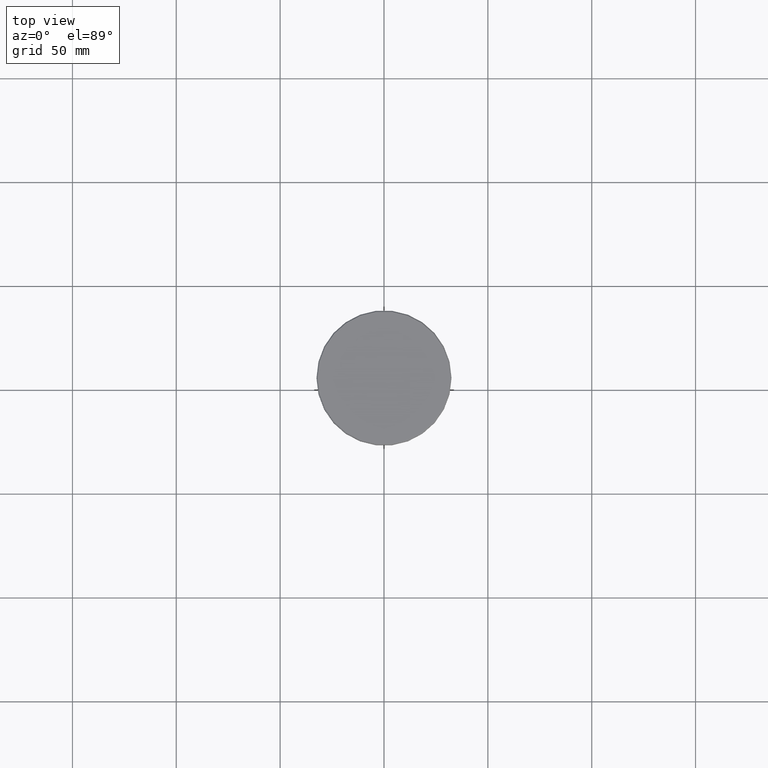
[diagram: clean part render]
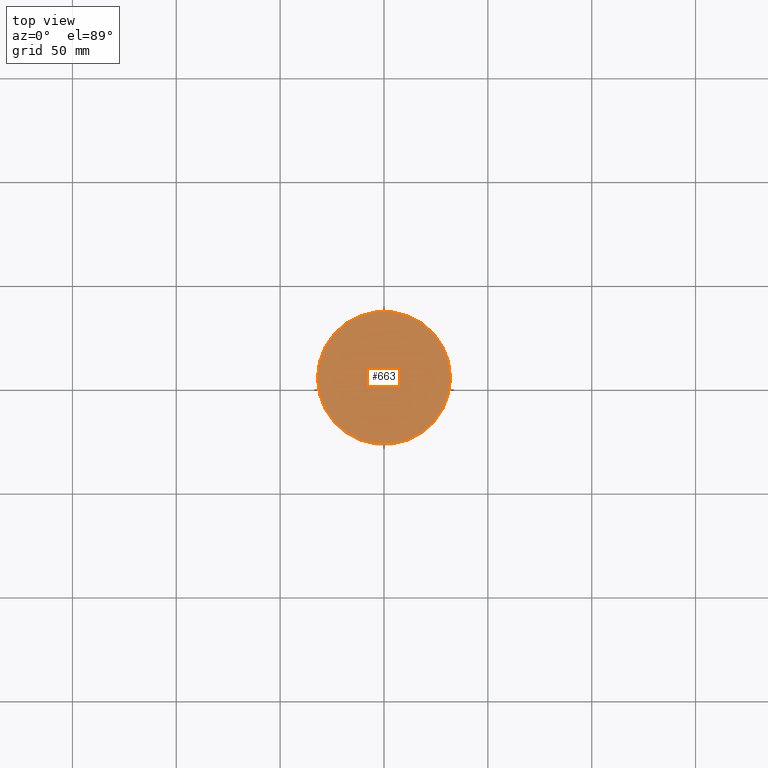
[diagram: same view with one face highlighted and labeled with its STEP entity id]
A machine part, top view. The second image highlights one B-rep face of the part: STEP entity #663.
In plain terms, the highlighted planar face has unit normal (0, -0, 1).
Its self-contained STEP definition (entity closure, byte-faithful):
#77 = VERTEX_POINT ( 'NONE', #855 ) ;
#105 = EDGE_CURVE ( 'NONE', #694, #77, #437, .T. ) ;
#170 = CIRCLE ( 'NONE', #498, 31.99999999999994671 ) ;
#183 = PLANE ( 'NONE',  #742 ) ;
#185 = EDGE_CURVE ( 'NONE', #77, #694, #170, .T. ) ;
#201 = DIRECTION ( 'NONE',  ( 1.000000000000000000, 0.000000000000000000, 0.000000000000000000 ) ) ;
#217 = ORIENTED_EDGE ( 'NONE', *, *, #185, .T. ) ;
#300 = CARTESIAN_POINT ( 'NONE',  ( 0.000000000000000000, 0.000000000000000000, 0.000000000000000000 ) ) ;
#315 = DIRECTION ( 'NONE',  ( -0.000000000000000000, -0.000000000000000000, 1.000000000000000000 ) ) ;
#365 = FACE_OUTER_BOUND ( 'NONE', #656, .T. ) ;
#437 = CIRCLE ( 'NONE', #550, 31.99999999999994671 ) ;
#498 = AXIS2_PLACEMENT_3D ( 'NONE', #926, #1023, #201 ) ;
#550 = AXIS2_PLACEMENT_3D ( 'NONE', #300, #315, #840 ) ;
#656 = EDGE_LOOP ( 'NONE', ( #1145, #217 ) ) ;
#663 = ADVANCED_FACE ( 'NONE', ( #365 ), #183, .T. ) ;
#694 = VERTEX_POINT ( 'NONE', #823 ) ;
#742 = AXIS2_PLACEMENT_3D ( 'NONE', #808, #1183, #813 ) ;
#808 = CARTESIAN_POINT ( 'NONE',  ( 0.000000000000000000, 0.000000000000000000, 0.000000000000000000 ) ) ;
#813 = DIRECTION ( 'NONE',  ( 1.000000000000000000, 0.000000000000000000, 0.000000000000000000 ) ) ;
#823 = CARTESIAN_POINT ( 'NONE',  ( -31.99999999999994671, 0.000000000000000000, 0.000000000000000000 ) ) ;
#840 = DIRECTION ( 'NONE',  ( 1.000000000000000000, 0.000000000000000000, 0.000000000000000000 ) ) ;
#855 = CARTESIAN_POINT ( 'NONE',  ( 31.99999999999994671, 3.949485927250211683E-15, 0.000000000000000000 ) ) ;
#926 = CARTESIAN_POINT ( 'NONE',  ( 0.000000000000000000, 0.000000000000000000, 0.000000000000000000 ) ) ;
#1023 = DIRECTION ( 'NONE',  ( -0.000000000000000000, -0.000000000000000000, 1.000000000000000000 ) ) ;
#1145 = ORIENTED_EDGE ( 'NONE', *, *, #105, .T. ) ;
#1183 = DIRECTION ( 'NONE',  ( 0.000000000000000000, -0.000000000000000000, 1.000000000000000000 ) ) ;